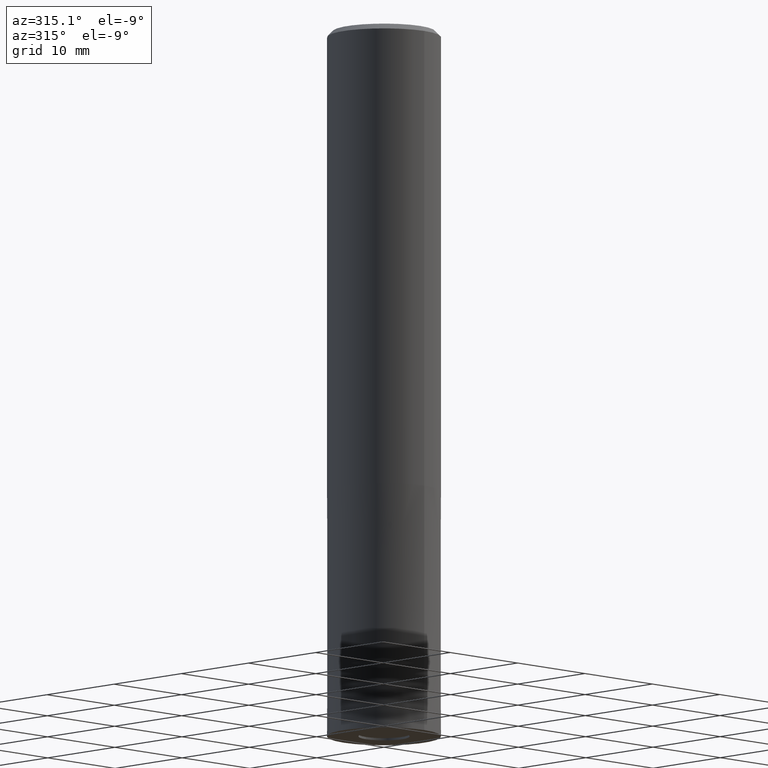
[diagram: clean part render]
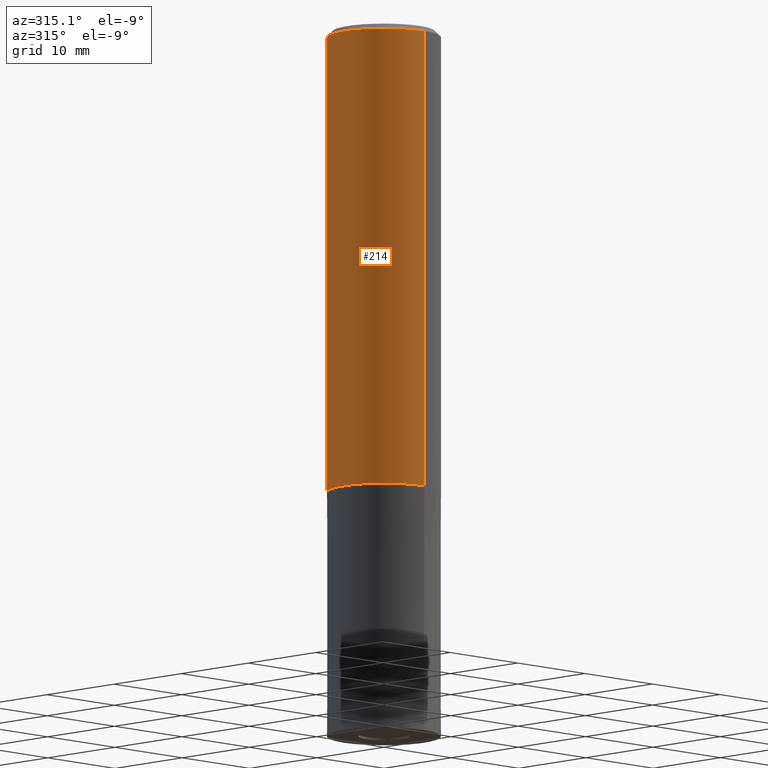
[diagram: same view with one face highlighted and labeled with its STEP entity id]
A machine part, auxiliary view. The second image highlights one B-rep face of the part: STEP entity #214.
In plain terms, the highlighted cylindrical surface (partial cylindrical patch) has radius 6 mm, axis along (-0, -0, 1).
Its self-contained STEP definition (entity closure, byte-faithful):
#96=VERTEX_POINT('',#241);
#116=EDGE_CURVE('',#140,#96,#262,.T.);
#128=EDGE_CURVE('',#170,#96,#278,.T.);
#138=VERTEX_POINT('',#288);
#140=VERTEX_POINT('',#290);
#156=EDGE_CURVE('',#140,#138,#308,.T.);
#170=VERTEX_POINT('',#325);
#214=ADVANCED_FACE('',(#376),#377,.T.);
#216=EDGE_CURVE('',#138,#170,#379,.T.);
#241=CARTESIAN_POINT('',(0.0,6.0,-49.0));
#262=CIRCLE('',#429,6.0);
#278=LINE('',#447,#448);
#288=CARTESIAN_POINT('',(7.34763812293426E-016,-6.0,-0.600000000000001));
#290=CARTESIAN_POINT('',(7.34763812293426E-016,-6.0,-49.0));
#308=LINE('',#487,#488);
#325=CARTESIAN_POINT('',(0.0,6.0,-0.600000000000001));
#376=FACE_OUTER_BOUND('',#567,.T.);
#377=CYLINDRICAL_SURFACE('',#568,6.0);
#379=CIRCLE('',#571,6.0);
#429=AXIS2_PLACEMENT_3D('',#602,#603,#604);
#447=CARTESIAN_POINT('',(-7.34763812293426E-016,6.0,-24.8));
#448=VECTOR('',#630,1.0);
#487=CARTESIAN_POINT('',(7.34763812293426E-016,-6.0,-24.8));
#488=VECTOR('',#661,1.0);
#567=EDGE_LOOP('',(#747,#748,#749,#750));
#568=AXIS2_PLACEMENT_3D('',#751,#752,#753);
#571=AXIS2_PLACEMENT_3D('',#754,#755,#756);
#602=CARTESIAN_POINT('',(0.0,0.0,-49.0));
#603=DIRECTION('',(0.0,0.0,-1.0));
#604=DIRECTION('',(0.0,1.0,0.0));
#630=DIRECTION('',(0.0,0.0,-1.0));
#661=DIRECTION('',(-0.0,-0.0,1.0));
#747=ORIENTED_EDGE('',*,*,#128,.T.);
#748=ORIENTED_EDGE('',*,*,#116,.F.);
#749=ORIENTED_EDGE('',*,*,#156,.T.);
#750=ORIENTED_EDGE('',*,*,#216,.T.);
#751=CARTESIAN_POINT('',(0.0,0.0,-24.8));
#752=DIRECTION('',(-0.0,-0.0,1.0));
#753=DIRECTION('',(0.0,1.0,0.0));
#754=CARTESIAN_POINT('',(0.0,0.0,-0.600000000000001));
#755=DIRECTION('',(0.0,0.0,-1.0));
#756=DIRECTION('',(0.0,1.0,0.0));